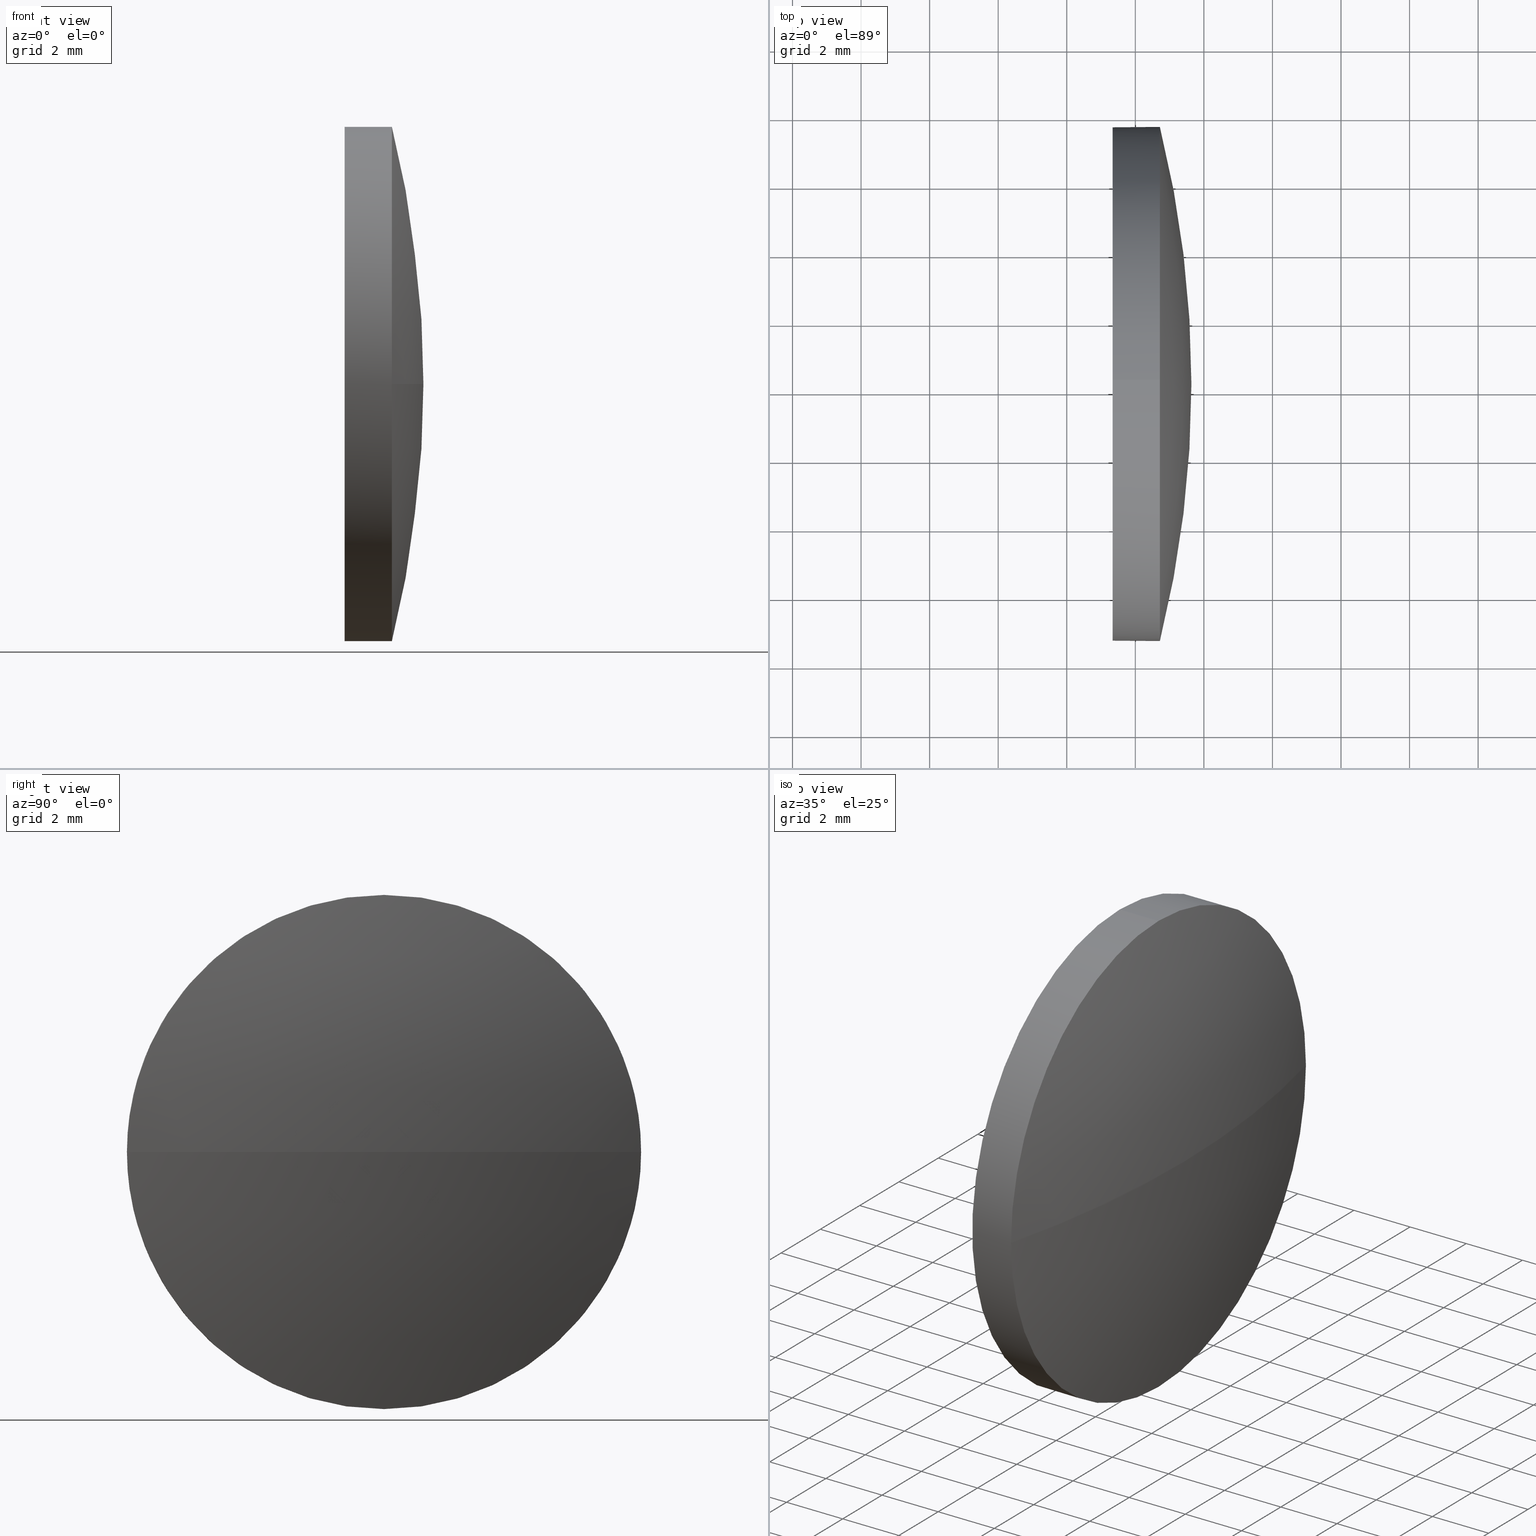
[diagram: canonical four-view strip — front | top / right | iso, engineering-drawing reading convention]
A machine part, canonical four-view strip (front | top / right | iso — engineering-drawing reading convention). The complete STEP part file that produces these views, byte-faithful:
ISO-10303-21;
HEADER;
FILE_DESCRIPTION (( 'STEP AP214' ),
    '1' );
FILE_NAME ('100024.STEP',
    '2019-04-22T01:26:14',
    ( '' ),
    ( '' ),
    'SwSTEP 2.0',
    'SolidWorks 2016',
    '' );
FILE_SCHEMA (( 'AUTOMOTIVE_DESIGN' ));
ENDSEC;

DATA;
#1 = DIRECTION ( 'NONE',  ( -1.000000000000000000, -0.0000000000000000000, -0.0000000000000000000 ) ) ;
#2 = CIRCLE ( 'NONE', #32, 7.500000000000007100 ) ;
#3 = DIRECTION ( 'NONE',  ( 0.0000000000000000000, 0.0000000000000000000, 1.000000000000000000 ) ) ;
#4 = CARTESIAN_POINT ( 'NONE',  ( 649.3368580883349100, 150.1803494272311400, 0.0000000000000000000 ) ) ;
#5 =( NAMED_UNIT ( * ) SI_UNIT ( $, .STERADIAN. ) SOLID_ANGLE_UNIT ( ) );
#6 = CARTESIAN_POINT ( 'NONE',  ( 650.7168580883347900, 150.1803494272311400, -7.500000000000007100 ) ) ;
#7 = ORIENTED_EDGE ( 'NONE', *, *, #37, .T. ) ;
#8 = CARTESIAN_POINT ( 'NONE',  ( 650.7168580883347900, 150.1803494272311400, 7.500000000000007100 ) ) ;
#9 = PRODUCT_DEFINITION_SHAPE ( 'NONE', 'NONE',  #115 ) ;
#10 = ORIENTED_EDGE ( 'NONE', *, *, #108, .T. ) ;
#11 = EDGE_CURVE ( 'NONE', #154, #98, #133, .T. ) ;
#12 = ORIENTED_EDGE ( 'NONE', *, *, #99, .F. ) ;
#13 = ADVANCED_FACE ( 'NONE', ( #72 ), #47, .T. ) ;
#14 = DIRECTION ( 'NONE',  ( -1.000000000000000000, -0.0000000000000000000, -0.0000000000000000000 ) ) ;
#15 = AXIS2_PLACEMENT_3D ( 'NONE', #90, #92, #169 ) ;
#16 = ORIENTED_EDGE ( 'NONE', *, *, #54, .T. ) ;
#17 = DIRECTION ( 'NONE',  ( 0.0000000000000000000, 1.000000000000000000, 0.0000000000000000000 ) ) ;
#18 = SURFACE_SIDE_STYLE ('',( #29 ) ) ;
#19 = EDGE_LOOP ( 'NONE', ( #55, #103, #61, #12 ) ) ;
#20 =( NAMED_UNIT ( * ) PLANE_ANGLE_UNIT ( ) SI_UNIT ( $, .RADIAN. ) );
#21 = EDGE_CURVE ( 'NONE', #184, #151, #117, .T. ) ;
#22 = DIRECTION ( 'NONE',  ( 1.000000000000000000, 0.0000000000000000000, 0.0000000000000000000 ) ) ;
#23 = COLOUR_RGB ( '',1.000000000000000000, 1.000000000000000000, 1.000000000000000000 ) ;
#24 = ORIENTED_EDGE ( 'NONE', *, *, #118, .F. ) ;
#25 = STYLED_ITEM ( 'NONE', ( #177 ), #66 ) ;
#26 = ORIENTED_EDGE ( 'NONE', *, *, #85, .F. ) ;
#27 = PRODUCT_DEFINITION_FORMATION_WITH_SPECIFIED_SOURCE ( '�κ�', '', #56, .NOT_KNOWN. ) ;
#28 = DIRECTION ( 'NONE',  ( -1.000000000000000000, -0.0000000000000000000, -0.0000000000000000000 ) ) ;
#29 = SURFACE_STYLE_FILL_AREA ( #135 ) ;
#30 = PRESENTATION_LAYER_ASSIGNMENT (  '', '', ( #180 ) ) ;
#31 = ORIENTED_EDGE ( 'NONE', *, *, #108, .F. ) ;
#32 = AXIS2_PLACEMENT_3D ( 'NONE', #143, #40, #156 ) ;
#33 =( LENGTH_UNIT ( ) NAMED_UNIT ( * ) SI_UNIT ( .MILLI., .METRE. ) );
#34 = VECTOR ( 'NONE', #137, 1000.000000000000000 ) ;
#35 = DIRECTION ( 'NONE',  ( 0.0000000000000000000, 1.000000000000000000, 0.0000000000000000000 ) ) ;
#36 = FACE_OUTER_BOUND ( 'NONE', #164, .T. ) ;
#37 = EDGE_CURVE ( 'NONE', #184, #57, #86, .T. ) ;
#38 = AXIS2_PLACEMENT_3D ( 'NONE', #79, #128, #113 ) ;
#39 = ORIENTED_EDGE ( 'NONE', *, *, #21, .T. ) ;
#40 = DIRECTION ( 'NONE',  ( -1.000000000000000000, -0.0000000000000000000, -0.0000000000000000000 ) ) ;
#41 = CARTESIAN_POINT ( 'NONE',  ( 620.6062059144215900, 150.1803494272310800, 0.0000000000000000000 ) ) ;
#42 = SURFACE_SIDE_STYLE ('',( #71 ) ) ;
#43 = VERTEX_POINT ( 'NONE', #170 ) ;
#44 = MECHANICAL_DESIGN_GEOMETRIC_PRESENTATION_REPRESENTATION (  '', ( #180 ), #87 ) ;
#45 = EDGE_CURVE ( 'NONE', #161, #98, #106, .T. ) ;
#46 = DIRECTION ( 'NONE',  ( -1.000000000000000000, -0.0000000000000000000, -0.0000000000000000000 ) ) ;
#47 = CYLINDRICAL_SURFACE ( 'NONE', #160, 7.500000000000007100 ) ;
#48 = DIRECTION ( 'NONE',  ( 0.0000000000000000000, 0.0000000000000000000, 1.000000000000000000 ) ) ;
#49 = FILL_AREA_STYLE_COLOUR ( '', #181 ) ;
#50 = SURFACE_STYLE_USAGE ( .BOTH. , #42 ) ;
#51 = DIRECTION ( 'NONE',  ( 0.0000000000000000000, 1.224646799147353200E-016, -1.000000000000000000 ) ) ;
#52 =( NAMED_UNIT ( * ) SI_UNIT ( $, .STERADIAN. ) SOLID_ANGLE_UNIT ( ) );
#53 = CARTESIAN_POINT ( 'NONE',  ( 620.6062059144215900, 150.1803494272310800, 0.0000000000000000000 ) ) ;
#54 = EDGE_CURVE ( 'NONE', #43, #57, #127, .T. ) ;
#55 = ORIENTED_EDGE ( 'NONE', *, *, #45, .F. ) ;
#56 = PRODUCT ( '100024', '100024', '', ( #114 ) ) ;
#57 = VERTEX_POINT ( 'NONE', #140 ) ;
#58 = ADVANCED_FACE ( 'NONE', ( #179 ), #122, .F. ) ;
#59 = ORIENTED_EDGE ( 'NONE', *, *, #11, .T. ) ;
#60 = ADVANCED_FACE ( 'NONE', ( #36 ), #77, .T. ) ;
#61 = ORIENTED_EDGE ( 'NONE', *, *, #21, .F. ) ;
#62 = DIRECTION ( 'NONE',  ( 0.0000000000000000000, 0.0000000000000000000, 1.000000000000000000 ) ) ;
#63 = CARTESIAN_POINT ( 'NONE',  ( 650.7168580883347900, 142.6803494272310500, -9.184850993605189400E-016 ) ) ;
#64 = DIRECTION ( 'NONE',  ( -0.0000000000000000000, 0.0000000000000000000, -1.000000000000000000 ) ) ;
#65 =( LENGTH_UNIT ( ) NAMED_UNIT ( * ) SI_UNIT ( .MILLI., .METRE. ) );
#66 = MANIFOLD_SOLID_BREP ( '��ת1', #120 ) ;
#67 = DIRECTION ( 'NONE',  ( 0.0000000000000000000, 0.0000000000000000000, 1.000000000000000000 ) ) ;
#68 = ORIENTED_EDGE ( 'NONE', *, *, #11, .F. ) ;
#69 = CARTESIAN_POINT ( 'NONE',  ( 644.7185011733270100, 150.1803494272311400, 7.500000000000007100 ) ) ;
#70 = APPLICATION_CONTEXT ( 'automotive_design' ) ;
#71 = SURFACE_STYLE_FILL_AREA ( #142 ) ;
#72 = FACE_OUTER_BOUND ( 'NONE', #95, .T. ) ;
#73 = ADVANCED_BREP_SHAPE_REPRESENTATION ( '100024', ( #66, #178 ), #155 ) ;
#74 = ADVANCED_FACE ( 'NONE', ( #136 ), #75, .T. ) ;
#75 = CYLINDRICAL_SURFACE ( 'NONE', #38, 7.500000000000007100 ) ;
#76 = CIRCLE ( 'NONE', #134, 31.03065217391321100 ) ;
#77 = SPHERICAL_SURFACE ( 'NONE', #124, 31.03065217391320000 ) ;
#78 = EDGE_CURVE ( 'NONE', #154, #43, #89, .T. ) ;
#79 = CARTESIAN_POINT ( 'NONE',  ( 644.7185011733270100, 150.1803494272311400, 0.0000000000000000000 ) ) ;
#80 = CARTESIAN_POINT ( 'NONE',  ( 650.7168580883347900, 157.6803494272311600, 0.0000000000000000000 ) ) ;
#81 = EDGE_LOOP ( 'NONE', ( #167, #7, #147, #88, #59 ) ) ;
#82 = DIRECTION ( 'NONE',  ( -1.000000000000000000, -0.0000000000000000000, -0.0000000000000000000 ) ) ;
#83 = MECHANICAL_DESIGN_GEOMETRIC_PRESENTATION_REPRESENTATION (  '', ( #25 ), #116 ) ;
#84 = UNCERTAINTY_MEASURE_WITH_UNIT (LENGTH_MEASURE( 1.000000000000000100E-005 ), #176, 'distance_accuracy_value', 'NONE');
#85 = EDGE_CURVE ( 'NONE', #161, #151, #76, .T. ) ;
#86 = LINE ( 'NONE', #183, #34 ) ;
#87 =( GEOMETRIC_REPRESENTATION_CONTEXT ( 3 ) GLOBAL_UNCERTAINTY_ASSIGNED_CONTEXT ( ( #145 ) ) GLOBAL_UNIT_ASSIGNED_CONTEXT ( ( #65, #112, #5 ) ) REPRESENTATION_CONTEXT ( 'NONE', 'WORKASPACE' ) );
#88 = ORIENTED_EDGE ( 'NONE', *, *, #78, .F. ) ;
#89 = LINE ( 'NONE', #69, #102 ) ;
#90 = CARTESIAN_POINT ( 'NONE',  ( 649.3368580883349100, 150.1803494272311400, 0.0000000000000000000 ) ) ;
#91 = CARTESIAN_POINT ( 'NONE',  ( 650.7168580883347900, 150.1803494272311400, 0.0000000000000000000 ) ) ;
#92 = DIRECTION ( 'NONE',  ( 1.000000000000000000, 0.0000000000000000000, 0.0000000000000000000 ) ) ;
#93 = DIRECTION ( 'NONE',  ( -0.0000000000000000000, 0.0000000000000000000, -1.000000000000000000 ) ) ;
#94 = AXIS2_PLACEMENT_3D ( 'NONE', #4, #148, #111 ) ;
#95 = EDGE_LOOP ( 'NONE', ( #174, #39, #10, #131, #24 ) ) ;
#96 = FILL_AREA_STYLE_COLOUR ( '', #23 ) ;
#97 = SURFACE_STYLE_USAGE ( .BOTH. , #18 ) ;
#98 = VERTEX_POINT ( 'NONE', #80 ) ;
#99 = EDGE_CURVE ( 'NONE', #98, #184, #2, .T. ) ;
#100 = FACE_OUTER_BOUND ( 'NONE', #19, .T. ) ;
#101 = ORIENTED_EDGE ( 'NONE', *, *, #118, .T. ) ;
#102 = VECTOR ( 'NONE', #171, 1000.000000000000000 ) ;
#103 = ORIENTED_EDGE ( 'NONE', *, *, #85, .T. ) ;
#104 = PRESENTATION_LAYER_ASSIGNMENT (  '', '', ( #25 ) ) ;
#105 = PRESENTATION_STYLE_ASSIGNMENT (( #50 ) ) ;
#106 = CIRCLE ( 'NONE', #168, 31.03065217391321100 ) ;
#107 = CARTESIAN_POINT ( 'NONE',  ( 644.7185011733270100, 150.1803494272311400, 0.0000000000000000000 ) ) ;
#108 = EDGE_CURVE ( 'NONE', #151, #154, #125, .T. ) ;
#109 = DIRECTION ( 'NONE',  ( -0.0000000000000000000, 0.0000000000000000000, 1.000000000000000000 ) ) ;
#110 = CARTESIAN_POINT ( 'NONE',  ( 651.6368580883348600, 150.1803494272310800, 0.0000000000000000000 ) ) ;
#111 = DIRECTION ( 'NONE',  ( 0.0000000000000000000, 0.0000000000000000000, 1.000000000000000000 ) ) ;
#112 =( NAMED_UNIT ( * ) PLANE_ANGLE_UNIT ( ) SI_UNIT ( $, .RADIAN. ) );
#113 = DIRECTION ( 'NONE',  ( 0.0000000000000000000, 0.0000000000000000000, 1.000000000000000000 ) ) ;
#114 = PRODUCT_CONTEXT ( 'NONE', #129, 'mechanical' ) ;
#115 = PRODUCT_DEFINITION ( 'δ֪', '', #27, #119 ) ;
#116 =( GEOMETRIC_REPRESENTATION_CONTEXT ( 3 ) GLOBAL_UNCERTAINTY_ASSIGNED_CONTEXT ( ( #84 ) ) GLOBAL_UNIT_ASSIGNED_CONTEXT ( ( #176, #123, #175 ) ) REPRESENTATION_CONTEXT ( 'NONE', 'WORKASPACE' ) );
#117 = CIRCLE ( 'NONE', #138, 7.500000000000007100 ) ;
#118 = EDGE_CURVE ( 'NONE', #57, #43, #150, .T. ) ;
#119 = PRODUCT_DEFINITION_CONTEXT ( 'detailed design', #70, 'design' ) ;
#120 = CLOSED_SHELL ( 'NONE', ( #74, #152, #60, #13, #58 ) ) ;
#121 = DIRECTION ( 'NONE',  ( 1.000000000000000000, 0.0000000000000000000, 0.0000000000000000000 ) ) ;
#122 = PLANE ( 'NONE',  #15 ) ;
#123 =( NAMED_UNIT ( * ) PLANE_ANGLE_UNIT ( ) SI_UNIT ( $, .RADIAN. ) );
#124 = AXIS2_PLACEMENT_3D ( 'NONE', #41, #64, #35 ) ;
#125 = CIRCLE ( 'NONE', #149, 7.500000000000007100 ) ;
#126 = CARTESIAN_POINT ( 'NONE',  ( 650.7168580883347900, 150.1803494272311400, 0.0000000000000000000 ) ) ;
#127 = CIRCLE ( 'NONE', #153, 7.500000000000007100 ) ;
#128 = DIRECTION ( 'NONE',  ( -1.000000000000000000, -0.0000000000000000000, -0.0000000000000000000 ) ) ;
#129 = APPLICATION_CONTEXT ( 'automotive_design' ) ;
#130 = AXIS2_PLACEMENT_3D ( 'NONE', #186, #14, #165 ) ;
#131 = ORIENTED_EDGE ( 'NONE', *, *, #78, .T. ) ;
#132 = SPHERICAL_SURFACE ( 'NONE', #163, 31.03065217391320000 ) ;
#133 = CIRCLE ( 'NONE', #130, 7.500000000000007100 ) ;
#134 = AXIS2_PLACEMENT_3D ( 'NONE', #53, #51, #173 ) ;
#135 = FILL_AREA_STYLE ('',( #49 ) ) ;
#136 = FACE_OUTER_BOUND ( 'NONE', #81, .T. ) ;
#137 = DIRECTION ( 'NONE',  ( -1.000000000000000000, -0.0000000000000000000, -0.0000000000000000000 ) ) ;
#138 = AXIS2_PLACEMENT_3D ( 'NONE', #91, #46, #166 ) ;
#139 = CARTESIAN_POINT ( 'NONE',  ( 649.3368580883349100, 150.1803494272311400, 0.0000000000000000000 ) ) ;
#140 = CARTESIAN_POINT ( 'NONE',  ( 649.3368580883349100, 150.1803494272311400, -7.500000000000007100 ) ) ;
#141 = ORIENTED_EDGE ( 'NONE', *, *, #45, .T. ) ;
#142 = FILL_AREA_STYLE ('',( #96 ) ) ;
#143 = CARTESIAN_POINT ( 'NONE',  ( 650.7168580883347900, 150.1803494272311400, 0.0000000000000000000 ) ) ;
#144 = CARTESIAN_POINT ( 'NONE',  ( 0.0000000000000000000, 0.0000000000000000000, 0.0000000000000000000 ) ) ;
#145 = UNCERTAINTY_MEASURE_WITH_UNIT (LENGTH_MEASURE( 1.000000000000000100E-005 ), #65, 'distance_accuracy_value', 'NONE');
#146 = APPLICATION_PROTOCOL_DEFINITION ( 'draft international standard', 'automotive_design', 1998, #129 ) ;
#147 = ORIENTED_EDGE ( 'NONE', *, *, #54, .F. ) ;
#148 = DIRECTION ( 'NONE',  ( -1.000000000000000000, -0.0000000000000000000, -0.0000000000000000000 ) ) ;
#149 = AXIS2_PLACEMENT_3D ( 'NONE', #126, #82, #3 ) ;
#150 = CIRCLE ( 'NONE', #94, 7.500000000000007100 ) ;
#151 = VERTEX_POINT ( 'NONE', #63 ) ;
#152 = ADVANCED_FACE ( 'NONE', ( #100 ), #132, .T. ) ;
#153 = AXIS2_PLACEMENT_3D ( 'NONE', #139, #28, #62 ) ;
#154 = VERTEX_POINT ( 'NONE', #8 ) ;
#155 =( GEOMETRIC_REPRESENTATION_CONTEXT ( 3 ) GLOBAL_UNCERTAINTY_ASSIGNED_CONTEXT ( ( #162 ) ) GLOBAL_UNIT_ASSIGNED_CONTEXT ( ( #33, #20, #52 ) ) REPRESENTATION_CONTEXT ( 'NONE', 'WORKASPACE' ) );
#156 = DIRECTION ( 'NONE',  ( 0.0000000000000000000, 0.0000000000000000000, 1.000000000000000000 ) ) ;
#157 = EDGE_LOOP ( 'NONE', ( #16, #101 ) ) ;
#158 = CARTESIAN_POINT ( 'NONE',  ( 620.6062059144215900, 150.1803494272310800, 0.0000000000000000000 ) ) ;
#159 = APPLICATION_PROTOCOL_DEFINITION ( 'draft international standard', 'automotive_design', 1998, #70 ) ;
#160 = AXIS2_PLACEMENT_3D ( 'NONE', #107, #1, #48 ) ;
#161 = VERTEX_POINT ( 'NONE', #110 ) ;
#162 = UNCERTAINTY_MEASURE_WITH_UNIT (LENGTH_MEASURE( 1.000000000000000100E-005 ), #33, 'distance_accuracy_value', 'NONE');
#163 = AXIS2_PLACEMENT_3D ( 'NONE', #158, #93, #17 ) ;
#164 = EDGE_LOOP ( 'NONE', ( #26, #141, #68, #31 ) ) ;
#165 = DIRECTION ( 'NONE',  ( 0.0000000000000000000, 0.0000000000000000000, 1.000000000000000000 ) ) ;
#166 = DIRECTION ( 'NONE',  ( 0.0000000000000000000, 0.0000000000000000000, 1.000000000000000000 ) ) ;
#167 = ORIENTED_EDGE ( 'NONE', *, *, #99, .T. ) ;
#168 = AXIS2_PLACEMENT_3D ( 'NONE', #185, #109, #121 ) ;
#169 = DIRECTION ( 'NONE',  ( 0.0000000000000000000, 0.0000000000000000000, -1.000000000000000000 ) ) ;
#170 = CARTESIAN_POINT ( 'NONE',  ( 649.3368580883349100, 150.1803494272311400, 7.500000000000007100 ) ) ;
#171 = DIRECTION ( 'NONE',  ( -1.000000000000000000, -0.0000000000000000000, -0.0000000000000000000 ) ) ;
#172 = SHAPE_DEFINITION_REPRESENTATION ( #9, #73 ) ;
#173 = DIRECTION ( 'NONE',  ( 0.0000000000000000000, 1.000000000000000000, 1.224646799147352700E-016 ) ) ;
#174 = ORIENTED_EDGE ( 'NONE', *, *, #37, .F. ) ;
#175 =( NAMED_UNIT ( * ) SI_UNIT ( $, .STERADIAN. ) SOLID_ANGLE_UNIT ( ) );
#176 =( LENGTH_UNIT ( ) NAMED_UNIT ( * ) SI_UNIT ( .MILLI., .METRE. ) );
#177 = PRESENTATION_STYLE_ASSIGNMENT (( #97 ) ) ;
#178 = AXIS2_PLACEMENT_3D ( 'NONE', #144, #67, #22 ) ;
#179 = FACE_OUTER_BOUND ( 'NONE', #157, .T. ) ;
#180 = STYLED_ITEM ( 'NONE', ( #105 ), #73 ) ;
#181 = COLOUR_RGB ( '',1.000000000000000000, 1.000000000000000000, 1.000000000000000000 ) ;
#182 = PRODUCT_RELATED_PRODUCT_CATEGORY ( 'part', '', ( #56 ) ) ;
#183 = CARTESIAN_POINT ( 'NONE',  ( 644.7185011733270100, 150.1803494272311400, -7.500000000000007100 ) ) ;
#184 = VERTEX_POINT ( 'NONE', #6 ) ;
#185 = CARTESIAN_POINT ( 'NONE',  ( 620.6062059144215900, 150.1803494272310800, 0.0000000000000000000 ) ) ;
#186 = CARTESIAN_POINT ( 'NONE',  ( 650.7168580883347900, 150.1803494272311400, 0.0000000000000000000 ) ) ;
ENDSEC;
END-ISO-10303-21;
